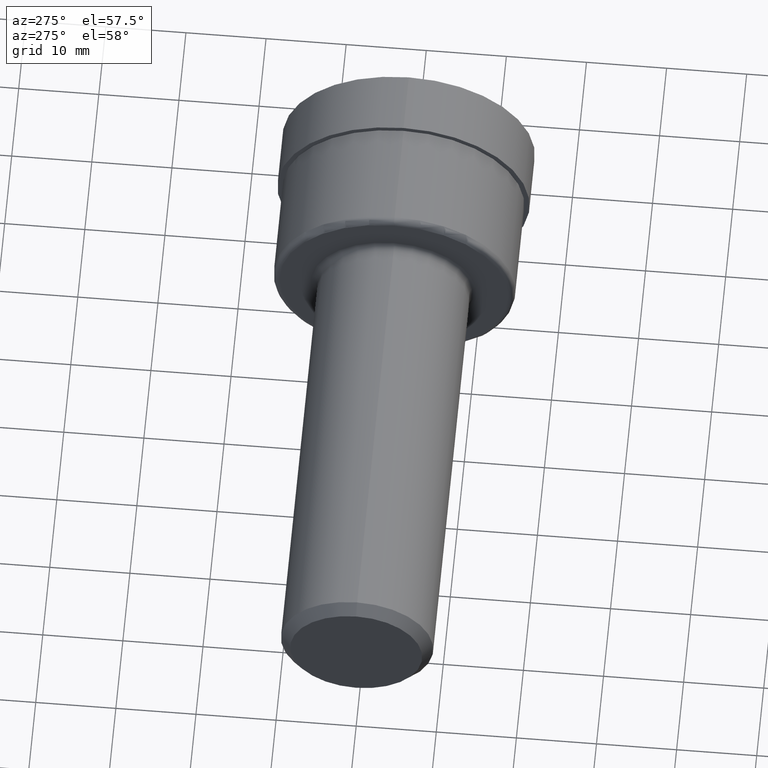
[diagram: clean part render]
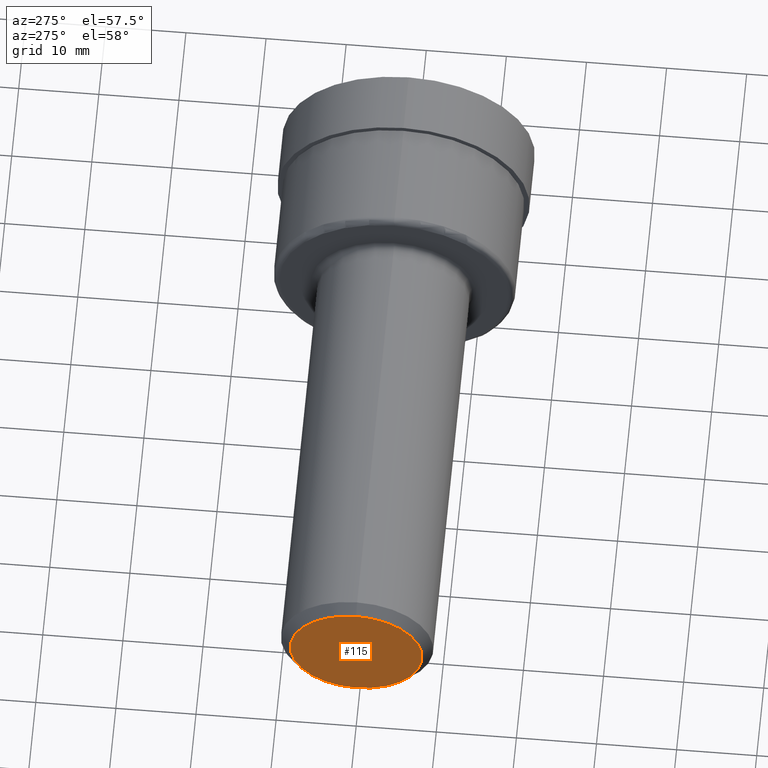
[diagram: same view with one face highlighted and labeled with its STEP entity id]
A machine part, auxiliary view. The second image highlights one B-rep face of the part: STEP entity #115.
In plain terms, the highlighted planar face has unit normal (1, 0, 0).
Its self-contained STEP definition (entity closure, byte-faithful):
#8 = DIRECTION ( 'NONE',  ( 1.000000000000000000, 0.000000000000000000, 0.000000000000000000 ) ) ;
#31 = CARTESIAN_POINT ( 'NONE',  ( 0.000000000000000000, 0.000000000000000000, 0.000000000000000000 ) ) ;
#45 = CIRCLE ( 'NONE', #295, 0.3248500000000002497 ) ;
#52 = VERTEX_POINT ( 'NONE', #546 ) ;
#59 = AXIS2_PLACEMENT_3D ( 'NONE', #645, #8, #123 ) ;
#115 = ADVANCED_FACE ( 'NONE', ( #490 ), #226, .F. ) ;
#123 = DIRECTION ( 'NONE',  ( 0.000000000000000000, 0.000000000000000000, -1.000000000000000000 ) ) ;
#187 = ORIENTED_EDGE ( 'NONE', *, *, #508, .T. ) ;
#197 = CIRCLE ( 'NONE', #346, 0.3248500000000002497 ) ;
#208 = VERTEX_POINT ( 'NONE', #429 ) ;
#226 = PLANE ( 'NONE',  #59 ) ;
#295 = AXIS2_PLACEMENT_3D ( 'NONE', #31, #374, #626 ) ;
#321 = CARTESIAN_POINT ( 'NONE',  ( 0.000000000000000000, 0.000000000000000000, 0.000000000000000000 ) ) ;
#346 = AXIS2_PLACEMENT_3D ( 'NONE', #321, #432, #533 ) ;
#374 = DIRECTION ( 'NONE',  ( -1.000000000000000000, -0.000000000000000000, -0.000000000000000000 ) ) ;
#429 = CARTESIAN_POINT ( 'NONE',  ( 0.000000000000000000, 4.284426826817016740E-17, 0.3248500000000002497 ) ) ;
#432 = DIRECTION ( 'NONE',  ( -1.000000000000000000, -0.000000000000000000, -0.000000000000000000 ) ) ;
#434 = EDGE_CURVE ( 'NONE', #208, #52, #197, .T. ) ;
#490 = FACE_OUTER_BOUND ( 'NONE', #690, .T. ) ;
#508 = EDGE_CURVE ( 'NONE', #52, #208, #45, .T. ) ;
#528 = ORIENTED_EDGE ( 'NONE', *, *, #434, .T. ) ;
#533 = DIRECTION ( 'NONE',  ( 0.000000000000000000, 0.000000000000000000, 1.000000000000000000 ) ) ;
#546 = CARTESIAN_POINT ( 'NONE',  ( 0.000000000000000000, 0.000000000000000000, -0.3248500000000002497 ) ) ;
#626 = DIRECTION ( 'NONE',  ( 0.000000000000000000, 0.000000000000000000, 1.000000000000000000 ) ) ;
#645 = CARTESIAN_POINT ( 'NONE',  ( 0.000000000000000000, 0.000000000000000000, 0.000000000000000000 ) ) ;
#690 = EDGE_LOOP ( 'NONE', ( #187, #528 ) ) ;